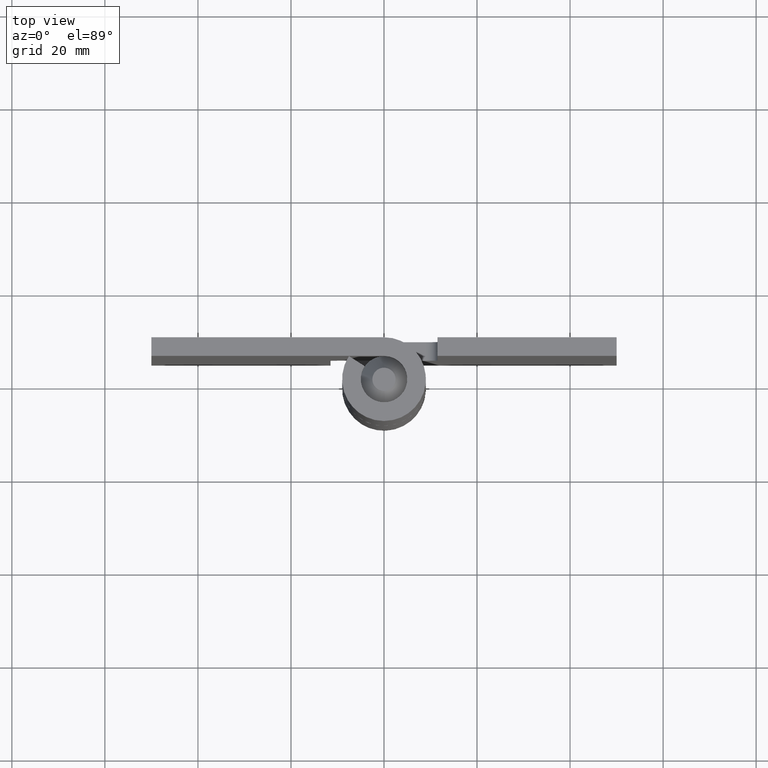
[diagram: clean part render]
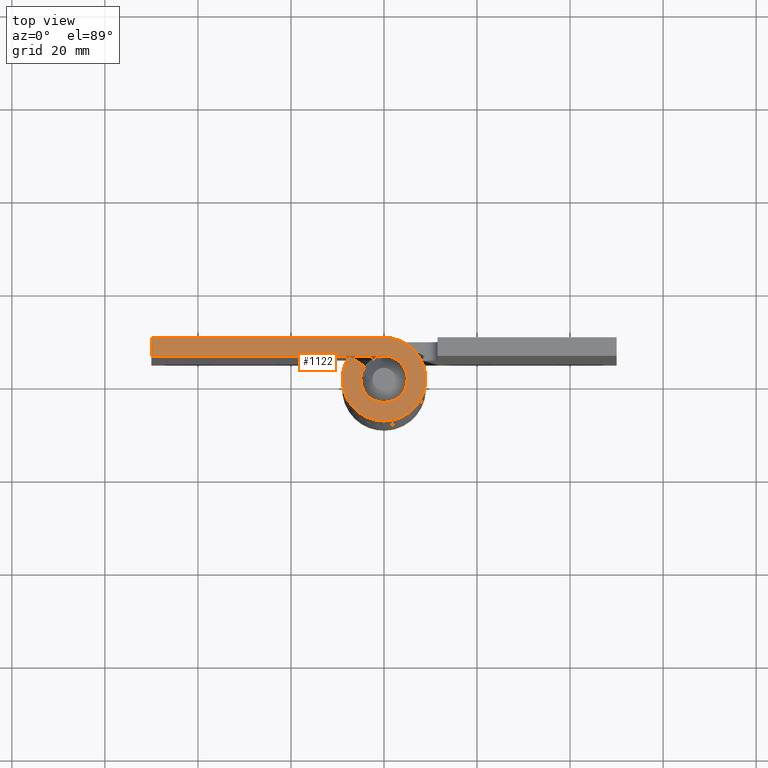
[diagram: same view with one face highlighted and labeled with its STEP entity id]
A machine part, top view. The second image highlights one B-rep face of the part: STEP entity #1122.
In plain terms, the highlighted face is a freeform B-spline surface patch.
Its self-contained STEP definition (entity closure, byte-faithful):
#1045=CARTESIAN_POINT('',(-52.946972227244132,-9.893227405319044,120.000015000000000));
#1046=CARTESIAN_POINT('',(11.945583631738071,-9.893227405319044,120.000015000000000));
#1047=CARTESIAN_POINT('',(-52.946972227244132,9.898821068407905,120.000015000000000));
#1048=CARTESIAN_POINT('',(11.945583631738071,9.898821068407905,120.000015000000000));
#1049=B_SPLINE_SURFACE_WITH_KNOTS('',1,1,((#1045,#1047),(#1046,#1048)),.UNSPECIFIED.,.F.,.F.,.U.,(2,2),(2,2),(0.0,64.892555858982206),(0.0,19.792048473726950),.UNSPECIFIED.);
#1050=CARTESIAN_POINT('',(-49.999991999999899,5.0,120.000015000000000));
#1051=VERTEX_POINT('',#1050);
#1052=CARTESIAN_POINT('',(-49.999991999999899,9.0,120.000015000000000));
#1053=VERTEX_POINT('',#1052);
#1054=CARTESIAN_POINT('',(-49.999991999999899,5.0,120.000015000000000));
#1055=CARTESIAN_POINT('',(-49.999991999999899,9.0,120.000015000000000));
#1056=QUASI_UNIFORM_CURVE('',1,(#1054,#1055),.UNSPECIFIED.,.F.,.U.);
#1057=EDGE_CURVE('',#1051,#1053,#1056,.T.);
#1058=ORIENTED_EDGE('',*,*,#1057,.F.);
#1059=CARTESIAN_POINT('',(-1.914294E-015,5.0,120.000015000000000));
#1060=VERTEX_POINT('',#1059);
#1061=CARTESIAN_POINT('',(-1.914294E-015,5.0,120.000015000000000));
#1062=CARTESIAN_POINT('',(-49.999991999999899,5.0,120.000015000000000));
#1063=QUASI_UNIFORM_CURVE('',1,(#1061,#1062),.UNSPECIFIED.,.F.,.U.);
#1064=EDGE_CURVE('',#1060,#1051,#1063,.T.);
#1065=ORIENTED_EDGE('',*,*,#1064,.F.);
#1066=CARTESIAN_POINT('',(-4.175823272122515,2.750000000000000,120.000015000000000));
#1067=VERTEX_POINT('',#1066);
#1068=CARTESIAN_POINT('',(0.0,5.0,120.000015000000000));
#1069=CARTESIAN_POINT('',(3.895320541917908,5.0,120.000015000000000));
#1070=CARTESIAN_POINT('',(4.848119278497269,1.223004276960274,120.000015000000000));
#1071=CARTESIAN_POINT('',(5.800918015076634,-2.553991446079455,120.000015000000000));
#1072=CARTESIAN_POINT('',(2.371708245126286,-4.401704215414752,120.000015000000000));
#1073=CARTESIAN_POINT('',(-1.057501524824059,-6.249416984750051,120.000015000000000));
#1074=CARTESIAN_POINT('',(-3.687875547500712,-3.376325509506795,120.000015000000000));
#1075=CARTESIAN_POINT('',(-6.318249570177365,-0.503234034263541,120.000015000000000));
#1076=CARTESIAN_POINT('',(-4.175823272122518,2.749999999999999,120.000015000000000));
#1084=(BOUNDED_CURVE()B_SPLINE_CURVE(2,(#1068,#1069,#1070,#1071,#1072,#1073,#1074,#1075,#1076),.UNSPECIFIED.,.F.,.U.)B_SPLINE_CURVE_WITH_KNOTS((3,2,2,2,3),(0.0,0.250000000000000,0.500000000000000,0.750000000000000,1.0),.UNSPECIFIED.)CURVE()GEOMETRIC_REPRESENTATION_ITEM()RATIONAL_B_SPLINE_CURVE((1.0,0.788860207955774,1.0,0.788860207955774,1.0,0.788860207955774,1.0,0.788860207955774,1.0))REPRESENTATION_ITEM(''));
#1085=EDGE_CURVE('',#1060,#1067,#1084,.T.);
#1086=ORIENTED_EDGE('',*,*,#1085,.T.);
#1087=CARTESIAN_POINT('',(-7.516481889820520,4.950000000000000,120.000015000000000));
#1088=VERTEX_POINT('',#1087);
#1089=CARTESIAN_POINT('',(-7.516481889820520,4.950000000000000,120.000015000000000));
#1090=CARTESIAN_POINT('',(-4.175823272122515,2.750000000000000,120.000015000000000));
#1091=QUASI_UNIFORM_CURVE('',1,(#1089,#1090),.UNSPECIFIED.,.F.,.U.);
#1092=EDGE_CURVE('',#1088,#1067,#1091,.T.);
#1093=ORIENTED_EDGE('',*,*,#1092,.F.);
#1094=CARTESIAN_POINT('',(0.0,9.0,120.000015000000000));
#1095=VERTEX_POINT('',#1094);
#1096=CARTESIAN_POINT('',(0.0,9.0,120.000015000000000));
#1097=CARTESIAN_POINT('',(7.011576975452233,9.0,120.000014999999980));
#1098=CARTESIAN_POINT('',(8.726614701295084,2.201407698528493,120.000015000000000));
#1099=CARTESIAN_POINT('',(10.441652427137935,-4.597184602943015,120.000014999999980));
#1100=CARTESIAN_POINT('',(4.269074841227313,-7.923067587746552,120.000015000000000));
#1101=CARTESIAN_POINT('',(-1.903502744683306,-11.248950572550088,120.000014999999980));
#1102=CARTESIAN_POINT('',(-6.638175985501282,-6.077385917112231,120.000015000000000));
#1103=CARTESIAN_POINT('',(-11.372849226319254,-0.905821261674372,120.000014999999980));
#1104=CARTESIAN_POINT('',(-7.516481889820531,4.949999999999997,120.000015000000000));
#1112=(BOUNDED_CURVE()B_SPLINE_CURVE(2,(#1096,#1097,#1098,#1099,#1100,#1101,#1102,#1103,#1104),.UNSPECIFIED.,.F.,.U.)B_SPLINE_CURVE_WITH_KNOTS((3,2,2,2,3),(0.0,0.250000000000000,0.500000000000000,0.750000000000000,1.0),.UNSPECIFIED.)CURVE()GEOMETRIC_REPRESENTATION_ITEM()RATIONAL_B_SPLINE_CURVE((1.0,0.788860207955774,1.0,0.788860207955774,1.0,0.788860207955774,1.0,0.788860207955774,1.0))REPRESENTATION_ITEM(''));
#1113=EDGE_CURVE('',#1095,#1088,#1112,.T.);
#1114=ORIENTED_EDGE('',*,*,#1113,.F.);
#1115=CARTESIAN_POINT('',(-49.999991999999899,9.0,120.000015000000000));
#1116=CARTESIAN_POINT('',(0.0,9.0,120.000015000000000));
#1117=QUASI_UNIFORM_CURVE('',1,(#1115,#1116),.UNSPECIFIED.,.F.,.U.);
#1118=EDGE_CURVE('',#1053,#1095,#1117,.T.);
#1119=ORIENTED_EDGE('',*,*,#1118,.F.);
#1120=EDGE_LOOP('',(#1058,#1065,#1086,#1093,#1114,#1119));
#1121=FACE_OUTER_BOUND('',#1120,.T.);
#1122=ADVANCED_FACE('',(#1121),#1049,.T.);